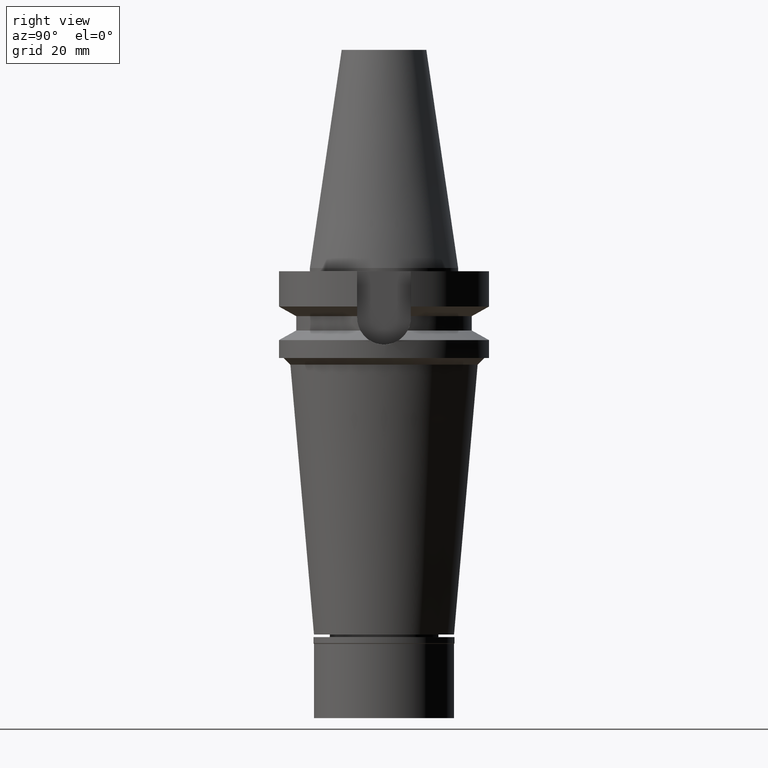
[diagram: clean part render]
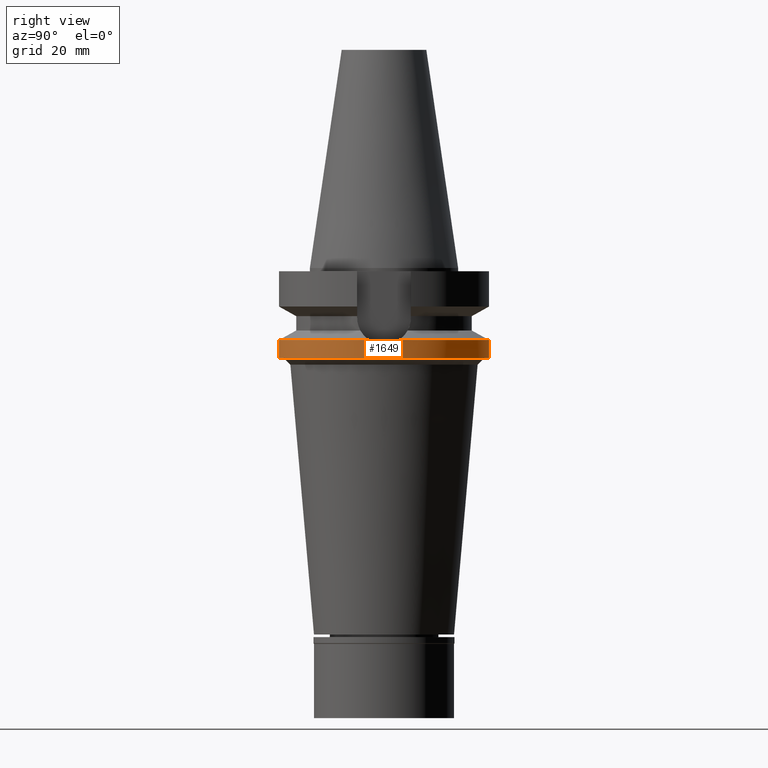
[diagram: same view with one face highlighted and labeled with its STEP entity id]
A machine part, right view. The second image highlights one B-rep face of the part: STEP entity #1649.
In plain terms, the highlighted cylindrical surface (partial cylindrical patch) has radius 31.5 mm, axis along (0, 0, -1).
Its self-contained STEP definition (entity closure, byte-faithful):
#14 = CARTESIAN_POINT ( 'NONE',  ( 0.0000000000000000000, 31.50000000000000000, -27.00000000000000000 ) ) ;
#86 = CARTESIAN_POINT ( 'NONE',  ( 0.0000000000000000000, 0.0000000000000000000, -21.63449434733000132 ) ) ;
#101 = DIRECTION ( 'NONE',  ( 0.0000000000000000000, 0.0000000000000000000, -1.000000000000000000 ) ) ;
#110 = CARTESIAN_POINT ( 'NONE',  ( 31.23204665214350939, -4.116800018612844170, -21.88192961715470730 ) ) ;
#156 = CARTESIAN_POINT ( 'NONE',  ( 31.27810260522113239, -3.746773085393091396, -22.08603405626015004 ) ) ;
#165 = DIRECTION ( 'NONE',  ( 0.0000000000000000000, 1.000000000000000000, 0.0000000000000000000 ) ) ;
#180 = CARTESIAN_POINT ( 'NONE',  ( 31.41518316614764927, 2.308512963538521312, -22.66190176290348290 ) ) ;
#197 = CARTESIAN_POINT ( 'NONE',  ( 31.50000000000000000, 0.3826410993930649540, -23.00000000000000000 ) ) ;
#288 = VERTEX_POINT ( 'NONE', #2251 ) ;
#328 = B_SPLINE_CURVE_WITH_KNOTS ( 'NONE', 3,
 ( #406, #197, #931, #667, #426, #1656, #2617, #869, #1380, #685, #180, #3103, #1912, #2844, #2396 ),
 .UNSPECIFIED., .F., .F.,
 ( 4, 2, 2, 1, 1, 1, 2, 2, 4 ),
 ( 0.0000000000000000000, 0.2500000000000008327, 0.3750000000000012212, 0.4375000000000011657, 0.4687500000000015543, 0.4843750000000014433, 0.4921875000000013878, 0.5000000000000012212, 1.000000000000000000 ),
 .UNSPECIFIED. ) ;
#347 = VERTEX_POINT ( 'NONE', #408 ) ;
#358 = CIRCLE ( 'NONE', #1943, 31.50000000000000000 ) ;
#406 = CARTESIAN_POINT ( 'NONE',  ( 31.50000000000000000, 0.0000000000000000000, -23.00000000000000000 ) ) ;
#408 = CARTESIAN_POINT ( 'NONE',  ( 0.0000000000000000000, -31.50000000000000000, -27.00000000000000000 ) ) ;
#426 = CARTESIAN_POINT ( 'NONE',  ( 31.46210626620209183, 1.552337941068768323, -22.85144425606400276 ) ) ;
#501 = DIRECTION ( 'NONE',  ( 0.0000000000000000000, -1.000000000000000000, 0.0000000000000000000 ) ) ;
#556 = LINE ( 'NONE', #2255, #1449 ) ;
#569 = CIRCLE ( 'NONE', #2366, 31.50000000000000000 ) ;
#611 = CARTESIAN_POINT ( 'NONE',  ( 31.35448268468059396, -3.025770148809026949, -22.41207090081846331 ) ) ;
#629 = CARTESIAN_POINT ( 'NONE',  ( 31.50000000000000000, 0.0000000000000000000, -23.00000000000000000 ) ) ;
#667 = CARTESIAN_POINT ( 'NONE',  ( 31.47112858377301592, 1.356751588952566534, -22.88729331202611661 ) ) ;
#685 = CARTESIAN_POINT ( 'NONE',  ( 31.41695943491941989, 2.284197526793163124, -22.66913871893044785 ) ) ;
#740 = CARTESIAN_POINT ( 'NONE',  ( 0.0000000000000000000, -31.50000000000000000, -21.63449434733000132 ) ) ;
#838 = ORIENTED_EDGE ( 'NONE', *, *, #1269, .T. ) ;
#853 = VERTEX_POINT ( 'NONE', #14 ) ;
#865 = CARTESIAN_POINT ( 'NONE',  ( 31.50000000000000000, 0.0000000000000000000, -23.00000000000000000 ) ) ;
#869 = CARTESIAN_POINT ( 'NONE',  ( 31.42562226952464499, 2.162530034181811889, -22.70438244339279166 ) ) ;
#890 = CARTESIAN_POINT ( 'NONE',  ( 0.0000000000000000000, 0.0000000000000000000, -21.63449434733000132 ) ) ;
#898 = CARTESIAN_POINT ( 'NONE',  ( 31.33669865037369462, -3.204466084827169770, -22.33739431481595261 ) ) ;
#931 = CARTESIAN_POINT ( 'NONE',  ( 31.49278214594324865, 0.7712514758315908159, -22.97267231925043518 ) ) ;
#995 = DIRECTION ( 'NONE',  ( 0.0000000000000000000, -1.105773104655000034E-13, -1.000000000000000000 ) ) ;
#1004 = DIRECTION ( 'NONE',  ( 0.0000000000000000000, 0.0000000000000000000, -1.000000000000000000 ) ) ;
#1058 = CARTESIAN_POINT ( 'NONE',  ( 31.40202800534697758, -2.481444113994853318, -22.60822717365990187 ) ) ;
#1081 = CARTESIAN_POINT ( 'NONE',  ( 31.37853676502496469, -2.762248391759756228, -22.51183215912566027 ) ) ;
#1150 = FACE_OUTER_BOUND ( 'NONE', #1412, .T. ) ;
#1207 = CYLINDRICAL_SURFACE ( 'NONE', #1699, 31.50000000000000000 ) ;
#1269 = EDGE_CURVE ( 'NONE', #2310, #288, #569, .T. ) ;
#1320 = B_SPLINE_CURVE_WITH_KNOTS ( 'NONE', 3,
 ( #1617, #110, #156, #898, #611, #1081, #1582, #1058, #2357, #2561, #2324, #2809, #2577, #3083, #629 ),
 .UNSPECIFIED., .F., .F.,
 ( 4, 2, 2, 1, 1, 1, 2, 2, 4 ),
 ( 0.0000000000000000000, 0.2500000000000170419, 0.3750000000000255351, 0.4375000000000304201, 0.4687500000000334732, 0.4843750000000344169, 0.4921875000000345279, 0.5000000000000347500, 1.000000000000000000 ),
 .UNSPECIFIED. ) ;
#1380 = CARTESIAN_POINT ( 'NONE',  ( 31.41960269202028755, 2.247715309164453945, -22.67990300502093604 ) ) ;
#1384 = EDGE_CURVE ( 'NONE', #2179, #347, #556, .T. ) ;
#1412 = EDGE_LOOP ( 'NONE', ( #3019, #2535, #2757, #3051, #838, #2155, #2202 ) ) ;
#1449 = VECTOR ( 'NONE', #995, 1000.000000000000000 ) ;
#1473 = VECTOR ( 'NONE', #3114, 1000.000000000000000 ) ;
#1510 = VERTEX_POINT ( 'NONE', #865 ) ;
#1564 = EDGE_CURVE ( 'NONE', #2616, #1510, #1320, .T. ) ;
#1582 = CARTESIAN_POINT ( 'NONE',  ( 31.38990831241815371, -2.631613843541948050, -22.55865027484094298 ) ) ;
#1617 = CARTESIAN_POINT ( 'NONE',  ( 31.17899877608999759, -4.485536235554000051, -21.63449434733000132 ) ) ;
#1649 = ADVANCED_FACE ( 'NONE', ( #1150 ), #1207, .T. ) ;
#1653 = CARTESIAN_POINT ( 'NONE',  ( 0.0000000000000000000, 31.50000000000000000, -21.63449434733000132 ) ) ;
#1656 = CARTESIAN_POINT ( 'NONE',  ( 31.44586609457441995, 1.845454247277340976, -22.78625020178326110 ) ) ;
#1699 = AXIS2_PLACEMENT_3D ( 'NONE', #2446, #1004, #501 ) ;
#1708 = DIRECTION ( 'NONE',  ( 0.0000000000000000000, -1.000000000000000000, 0.0000000000000000000 ) ) ;
#1821 = CIRCLE ( 'NONE', #2745, 31.50000000000001421 ) ;
#1843 = EDGE_CURVE ( 'NONE', #2616, #2179, #1821, .T. ) ;
#1907 = LINE ( 'NONE', #1653, #1473 ) ;
#1912 = CARTESIAN_POINT ( 'NONE',  ( 31.36323119523214231, 3.008315199241579307, -22.45004444777500296 ) ) ;
#1931 = DIRECTION ( 'NONE',  ( 0.0000000000000000000, 0.0000000000000000000, 1.000000000000000000 ) ) ;
#1943 = AXIS2_PLACEMENT_3D ( 'NONE', #2917, #1931, #1708 ) ;
#2148 = EDGE_CURVE ( 'NONE', #347, #853, #358, .T. ) ;
#2155 = ORIENTED_EDGE ( 'NONE', *, *, #2513, .F. ) ;
#2179 = VERTEX_POINT ( 'NONE', #740 ) ;
#2202 = ORIENTED_EDGE ( 'NONE', *, *, #1564, .F. ) ;
#2251 = CARTESIAN_POINT ( 'NONE',  ( 31.17899877608999759, 4.485536235554000051, -21.63449434733000132 ) ) ;
#2255 = CARTESIAN_POINT ( 'NONE',  ( 0.0000000000000000000, -31.50000000000000000, -21.63449434733000132 ) ) ;
#2310 = VERTEX_POINT ( 'NONE', #2686 ) ;
#2324 = CARTESIAN_POINT ( 'NONE',  ( 31.41180861714115125, -2.353982790964158411, -22.64814182965407596 ) ) ;
#2348 = DIRECTION ( 'NONE',  ( 0.0000000000000000000, 0.0000000000000000000, -1.000000000000000000 ) ) ;
#2357 = CARTESIAN_POINT ( 'NONE',  ( 31.40780107372058438, -2.406948783663137803, -22.63179417458310994 ) ) ;
#2366 = AXIS2_PLACEMENT_3D ( 'NONE', #890, #2348, #165 ) ;
#2396 = CARTESIAN_POINT ( 'NONE',  ( 31.17899877608999759, 4.485536235554000051, -21.63449434733000132 ) ) ;
#2446 = CARTESIAN_POINT ( 'NONE',  ( 0.0000000000000000000, 2.143682989567000019E-14, 75.04500000000000171 ) ) ;
#2513 = EDGE_CURVE ( 'NONE', #1510, #288, #328, .T. ) ;
#2535 = ORIENTED_EDGE ( 'NONE', *, *, #1384, .T. ) ;
#2536 = DIRECTION ( 'NONE',  ( 0.9898094849552905306, -0.1423979757318985240, 0.0000000000000000000 ) ) ;
#2561 = CARTESIAN_POINT ( 'NONE',  ( 31.41021379343266773, -2.375151714556286819, -22.64163681815942653 ) ) ;
#2577 = CARTESIAN_POINT ( 'NONE',  ( 31.47112765223344155, -1.555185600454005890, -22.89003262691533180 ) ) ;
#2616 = VERTEX_POINT ( 'NONE', #2815 ) ;
#2617 = CARTESIAN_POINT ( 'NONE',  ( 31.43706933494273770, 1.991945618342456426, -22.75079906710568167 ) ) ;
#2686 = CARTESIAN_POINT ( 'NONE',  ( 0.0000000000000000000, 31.50000000000000000, -21.63449434733000132 ) ) ;
#2745 = AXIS2_PLACEMENT_3D ( 'NONE', #86, #101, #2536 ) ;
#2757 = ORIENTED_EDGE ( 'NONE', *, *, #2148, .T. ) ;
#2809 = CARTESIAN_POINT ( 'NONE',  ( 31.41248069583260616, -2.345008849050103095, -22.65088272112295087 ) ) ;
#2815 = CARTESIAN_POINT ( 'NONE',  ( 31.17899877608999759, -4.485536235554000051, -21.63449434733000132 ) ) ;
#2844 = CARTESIAN_POINT ( 'NONE',  ( 31.28510220348912441, 3.748010450604906563, -22.12940068746156896 ) ) ;
#2917 = CARTESIAN_POINT ( 'NONE',  ( 0.0000000000000000000, 2.143682989567000019E-14, -27.00000000000000000 ) ) ;
#3019 = ORIENTED_EDGE ( 'NONE', *, *, #1843, .T. ) ;
#3051 = ORIENTED_EDGE ( 'NONE', *, *, #3084, .F. ) ;
#3083 = CARTESIAN_POINT ( 'NONE',  ( 31.50000000000000711, -0.7653339290213663215, -23.00000000000001066 ) ) ;
#3084 = EDGE_CURVE ( 'NONE', #2310, #853, #1907, .T. ) ;
#3103 = CARTESIAN_POINT ( 'NONE',  ( 31.41416941625790926, 2.322264553260671605, -22.65776938924096129 ) ) ;
#3114 = DIRECTION ( 'NONE',  ( 0.0000000000000000000, 1.099151708819000049E-13, -1.000000000000000000 ) ) ;